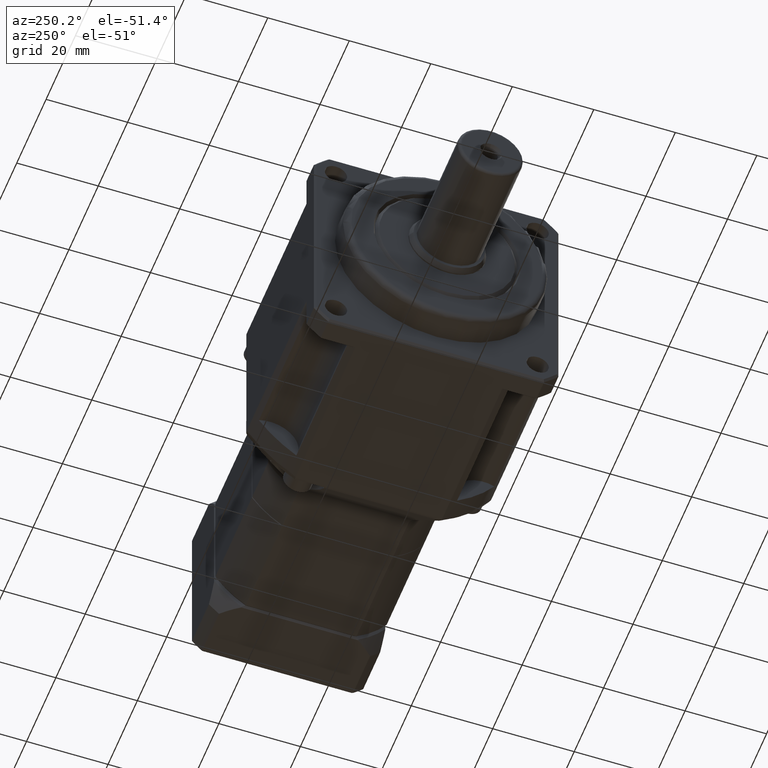
[diagram: clean part render]
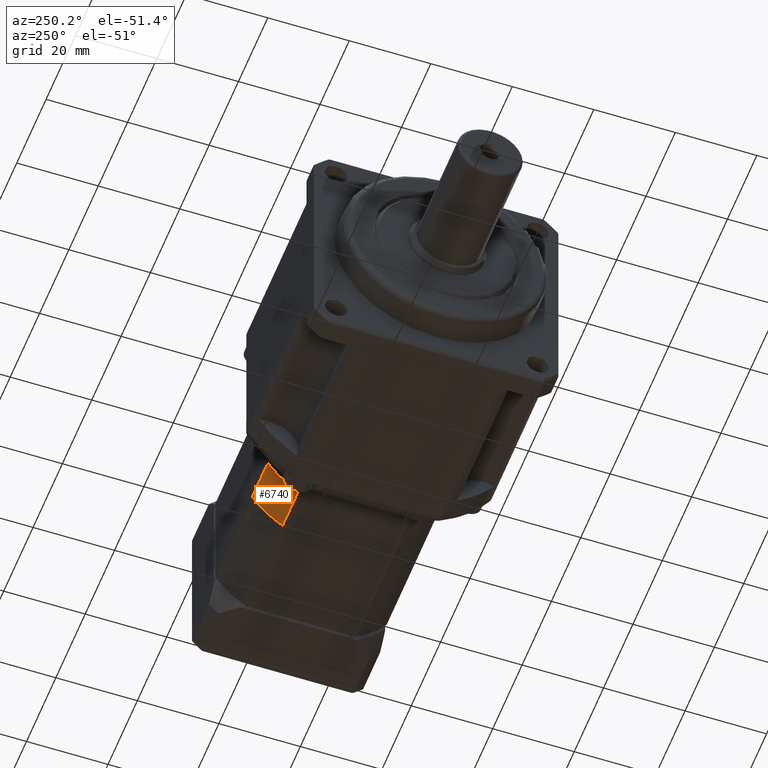
[diagram: same view with one face highlighted and labeled with its STEP entity id]
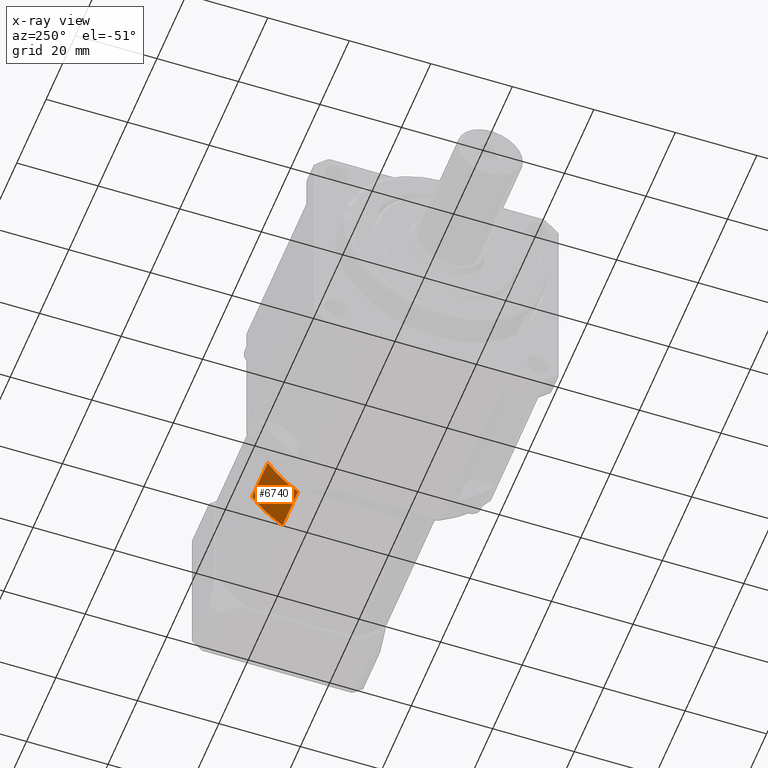
[diagram: x-ray of the same camera — body ghosted, the highlighted face saturated]
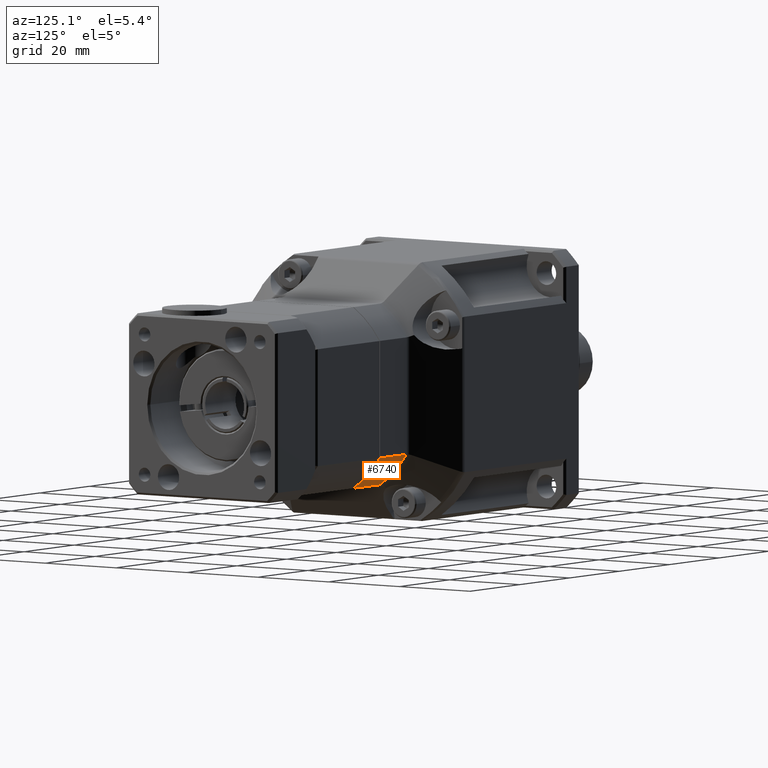
[diagram: same view with one face highlighted and labeled with its STEP entity id]
A machine part, auxiliary view. The second image highlights one B-rep face of the part: STEP entity #6740.
The next image is the same camera in x-ray: the body ghosted, the highlighted face saturated — about 0% of this face is hidden behind the body in this view.
A second angle (auxiliary view) of the same face is appended — the face is thin or edge-on in the first view.
In plain terms, the highlighted cylindrical surface (partial cylindrical patch) has radius 25 mm, axis along (-1, -0, -0).
Its self-contained STEP definition (entity closure, byte-faithful):
#164=B_SPLINE_CURVE_WITH_KNOTS('',3,(#11867,#11868,#11869,#11870),
 .UNSPECIFIED.,.F.,.F.,(4,4),(0.00795565384757262,1.15212985470496),
 .UNSPECIFIED.);
#497=LINE('',#11337,#816);
#521=LINE('',#11871,#840);
#816=VECTOR('',#9058,10.6102454127815);
#840=VECTOR('',#9180,10.6102454127815);
#1366=CYLINDRICAL_SURFACE('',#7495,25.);
#1922=FACE_OUTER_BOUND('',#2507,.T.);
#2507=EDGE_LOOP('',(#5883,#5884,#5885,#5886));
#2907=CIRCLE('',#7449,25.);
#3416=VERTEX_POINT('',#11334);
#3417=VERTEX_POINT('',#11336);
#3420=VERTEX_POINT('',#11346);
#3478=VERTEX_POINT('',#11866);
#4222=EDGE_CURVE('',#3416,#3417,#497,.T.);
#4226=EDGE_CURVE('',#3420,#3416,#2907,.T.);
#4312=EDGE_CURVE('',#3417,#3478,#164,.T.);
#4313=EDGE_CURVE('',#3478,#3420,#521,.T.);
#5883=ORIENTED_EDGE('',*,*,#4312,.F.);
#5884=ORIENTED_EDGE('',*,*,#4222,.F.);
#5885=ORIENTED_EDGE('',*,*,#4226,.F.);
#5886=ORIENTED_EDGE('',*,*,#4313,.F.);
#6740=ADVANCED_FACE('',(#1922),#1366,.T.);
#7449=AXIS2_PLACEMENT_3D('',#11348,#9064,#9065);
#7495=AXIS2_PLACEMENT_3D('',#11865,#9178,#9179);
#9058=DIRECTION('',(-1.,-1.68744510124597E-20,-2.31276918266198E-15));
#9064=DIRECTION('center_axis',(1.,1.68744510124597E-20,2.31276918266198E-15));
#9065=DIRECTION('ref_axis',(-2.31276918266198E-15,-4.54497550705921E-16,
1.));
#9178=DIRECTION('center_axis',(-1.,-1.68744510124597E-20,-2.31276918266198E-15));
#9179=DIRECTION('ref_axis',(-2.31276918266198E-15,-4.54497550705921E-16,
1.));
#9180=DIRECTION('',(1.,1.68744510124597E-20,2.31276918266198E-15));
#11334=CARTESIAN_POINT('',(28.6218498129889,-29.6853481373327,-1.02363129312751));
#11336=CARTESIAN_POINT('',(18.0116044002074,-29.6853481373327,-1.02363129312753));
#11337=CARTESIAN_POINT('',(28.6218498129889,-29.6853481373327,-1.02363129312751));
#11346=CARTESIAN_POINT('',(28.621849812989,-37.1206881710822,-8.45897132687697));
#11348=CARTESIAN_POINT('Origin',(28.6218498129889,-50.6853481373327,12.541028673123));
#11865=CARTESIAN_POINT('Origin',(28.6218498129889,-50.6853481373327,12.541028673123));
#11866=CARTESIAN_POINT('',(18.0116044002074,-37.1206881710822,-8.45897132687699));
#11867=CARTESIAN_POINT('Ctrl Pts',(18.0116044007126,-29.6853493470283,-1.02363018183538));
#11868=CARTESIAN_POINT('Ctrl Pts',(18.0128989368656,-31.6015553608591,-3.98990227112735));
#11869=CARTESIAN_POINT('Ctrl Pts',(18.0128989368656,-34.1544171930824,-6.54276410335062));
#11870=CARTESIAN_POINT('Ctrl Pts',(18.0116044007127,-37.1206892823743,-8.4589701171814));
#11871=CARTESIAN_POINT('',(28.621849812989,-37.1206881710822,-8.45897132687697));